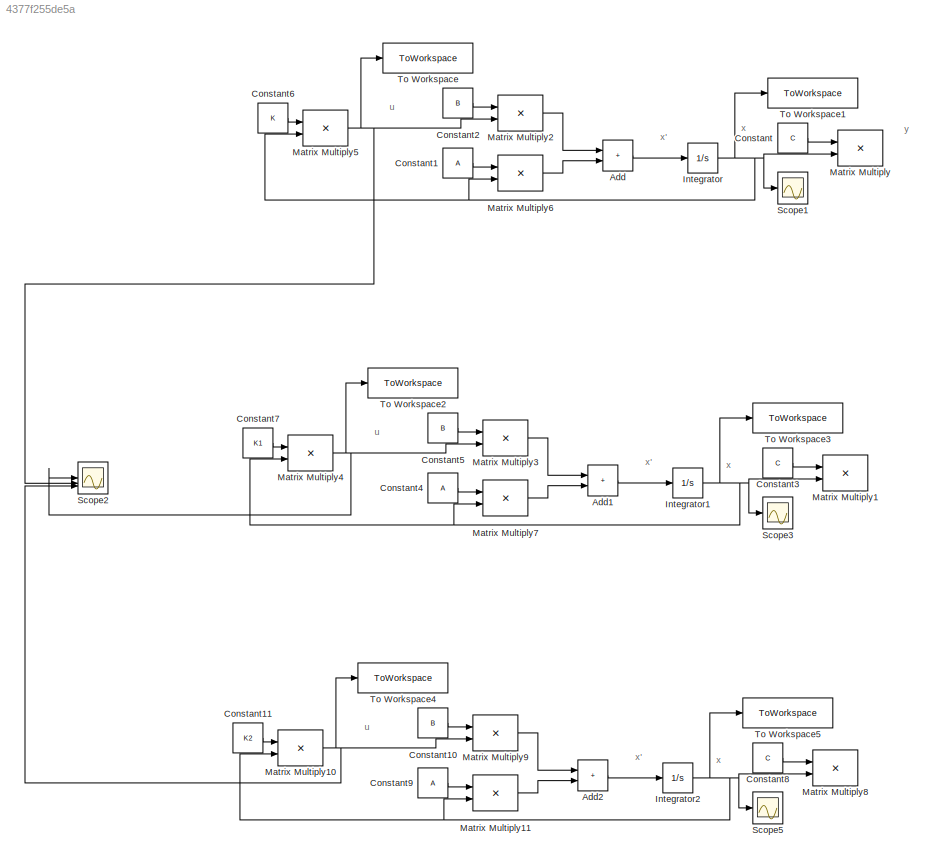
MODEL slx_4377f255de5a
KIND model
CONFIG AbsTol = auto
CONFIG EnableMultiTasking = off
CONFIG FixedStep = 0.0001
CONFIG MaxStep = auto
CONFIG MinStep = auto
CONFIG RelTol = 1e-3
CONFIG SampleTimeConstraint = Unconstrained
CONFIG SolverName = FixedStepAuto
CONFIG StartTime = 0.0
CONFIG StopTime = 10
BLOCK [Sum] Add
  IconShape = rectangular
BLOCK [Sum] Add1
  IconShape = rectangular
BLOCK [Sum] Add2
  IconShape = rectangular
BLOCK [Constant] Constant
  Value = C
BLOCK [Constant] Constant1
  Value = A
BLOCK [Constant] Constant10
  Value = B
BLOCK [Constant] Constant11
  Value = K2
  VectorParams1D = off
BLOCK [Constant] Constant2
  Value = B
BLOCK [Constant] Constant3
  Value = C
BLOCK [Constant] Constant4
  Value = A
BLOCK [Constant] Constant5
  Value = B
BLOCK [Constant] Constant6
  Value = K
  VectorParams1D = off
BLOCK [Constant] Constant7
  Value = K1
  VectorParams1D = off
BLOCK [Constant] Constant8
  Value = C
BLOCK [Constant] Constant9
  Value = A
BLOCK [Integrator] Integrator
  IgnoreLimit = on
  InitialCondition = x0
BLOCK [Integrator] Integrator1
  IgnoreLimit = on
  InitialCondition = x0
BLOCK [Integrator] Integrator2
  IgnoreLimit = on
  InitialCondition = x0
BLOCK [Product] Matrix Multiply
  Multiplication = Matrix(*)
BLOCK [Product] Matrix Multiply1
  Multiplication = Matrix(*)
BLOCK [Product] Matrix Multiply10
  Multiplication = Matrix(*)
BLOCK [Product] Matrix Multiply11
  Multiplication = Matrix(*)
BLOCK [Product] Matrix Multiply2
  Multiplication = Matrix(*)
BLOCK [Product] Matrix Multiply3
  Multiplication = Matrix(*)
BLOCK [Product] Matrix Multiply4
  Multiplication = Matrix(*)
BLOCK [Product] Matrix Multiply5
  Multiplication = Matrix(*)
BLOCK [Product] Matrix Multiply6
  Multiplication = Matrix(*)
BLOCK [Product] Matrix Multiply7
  Multiplication = Matrix(*)
BLOCK [Product] Matrix Multiply8
  Multiplication = Matrix(*)
BLOCK [Product] Matrix Multiply9
  Multiplication = Matrix(*)
BLOCK [Scope] Scope1
  Floating = off
  NumInputPorts = 1
  ScopeSpecificationString = Simulink.scopes.TimeScopeBlockCfg('CurrentConfiguration', extmgr.ConfigurationSet(extmgr.Configuration('Core','General UI',true),extmgr.Configuration('Core','Source UI',true),extmgr.Configuration('Sources','WiredSimulink',true,'DataLoggingVariableName','ScopeData2'),extmgr.Configuration('Visuals','Time Domain',true,'SerializedDisplays',{struct('MinYLimReal','-8.68513','MaxYLimReal','8.04839','YLab...<+1416ch>
BLOCK [Scope] Scope2
  Floating = off
  NumInputPorts = 3
  ScopeSpecificationString = Simulink.scopes.TimeScopeBlockCfg('CurrentConfiguration', extmgr.ConfigurationSet(extmgr.Configuration('Core','General UI',true),extmgr.Configuration('Core','Source UI',true),extmgr.Configuration('Sources','WiredSimulink',true,'DataLoggingVariableName','ScopeData1'),extmgr.Configuration('Visuals','Time Domain',true,'SerializedDisplays',{struct('MinYLimReal','-17.18017','MaxYLimReal','9.62517','YLa...<+1447ch>
BLOCK [Scope] Scope3
  Floating = off
  NumInputPorts = 1
  ScopeSpecificationString = Simulink.scopes.TimeScopeBlockCfg('CurrentConfiguration', extmgr.ConfigurationSet(extmgr.Configuration('Core','General UI',true),extmgr.Configuration('Core','Source UI',true),extmgr.Configuration('Sources','WiredSimulink',true,'DataLoggingVariableName','ScopeData2'),extmgr.Configuration('Visuals','Time Domain',true,'SerializedDisplays',{struct('MinYLimReal','-10.10587','MaxYLimReal','6.56523','YLa...<+1424ch>
BLOCK [Scope] Scope5
  Floating = off
  NumInputPorts = 1
  ScopeSpecificationString = Simulink.scopes.TimeScopeBlockCfg('CurrentConfiguration', extmgr.ConfigurationSet(extmgr.Configuration('Core','General UI',true),extmgr.Configuration('Core','Source UI',true),extmgr.Configuration('Sources','WiredSimulink',true,'DataLoggingVariableName','ScopeData4'),extmgr.Configuration('Visuals','Time Domain',true,'SerializedDisplays',{struct('MinYLimReal','-10.95959','MaxYLimReal','6.29175','YLa...<+1424ch>
BLOCK [ToWorkspace] To Workspace
  FixptAsFi = on
  MaxDataPoints = inf
  SampleTime = -1
  SaveFormat = Timeseries
  VariableName = u
BLOCK [ToWorkspace] To Workspace1
  FixptAsFi = on
  MaxDataPoints = inf
  SampleTime = -1
  SaveFormat = Timeseries
  VariableName = x
BLOCK [ToWorkspace] To Workspace2
  FixptAsFi = on
  MaxDataPoints = inf
  SampleTime = -1
  SaveFormat = Timeseries
  VariableName = u1
BLOCK [ToWorkspace] To Workspace3
  FixptAsFi = on
  MaxDataPoints = inf
  SampleTime = -1
  SaveFormat = Timeseries
  VariableName = x1
BLOCK [ToWorkspace] To Workspace4
  FixptAsFi = on
  MaxDataPoints = inf
  SampleTime = -1
  SaveFormat = Timeseries
  VariableName = u2
BLOCK [ToWorkspace] To Workspace5
  FixptAsFi = on
  MaxDataPoints = inf
  SampleTime = -1
  SaveFormat = Timeseries
  VariableName = x2
ANNOTATION (root): u
ANNOTATION (root): x
ANNOTATION (root): x'
ANNOTATION (root): y
LINE Add1:1 -> Integrator1:1
LINE Add2:1 -> Integrator2:1
LINE Add:1 -> Integrator:1
LINE Constant10:1 -> Matrix Multiply9:1
LINE Constant11:1 -> Matrix Multiply10:1
LINE Constant1:1 -> Matrix Multiply6:1
LINE Constant2:1 -> Matrix Multiply2:1
LINE Constant3:1 -> Matrix Multiply1:1
LINE Constant4:1 -> Matrix Multiply7:1
LINE Constant5:1 -> Matrix Multiply3:1
LINE Constant6:1 -> Matrix Multiply5:1
LINE Constant7:1 -> Matrix Multiply4:1
LINE Constant8:1 -> Matrix Multiply8:1
LINE Constant9:1 -> Matrix Multiply11:1
LINE Constant:1 -> Matrix Multiply:1
NET Integrator1:1 -> Matrix Multiply1:2, Matrix Multiply4:2, Matrix Multiply7:2, Scope3:1, To Workspace3:1
NET Integrator2:1 -> Matrix Multiply10:2, Matrix Multiply11:2, Matrix Multiply8:2, Scope5:1, To Workspace5:1
NET Integrator:1 -> Matrix Multiply5:2, Matrix Multiply6:2, Matrix Multiply:2, Scope1:1, To Workspace1:1
NET Matrix Multiply10:1 -> Matrix Multiply9:2, Scope2:3, To Workspace4:1
LINE Matrix Multiply11:1 -> Add2:2
LINE Matrix Multiply2:1 -> Add:1
LINE Matrix Multiply3:1 -> Add1:1
NET Matrix Multiply4:1 -> Matrix Multiply3:2, Scope2:1, To Workspace2:1
NET Matrix Multiply5:1 -> Matrix Multiply2:2, Scope2:2, To Workspace:1
LINE Matrix Multiply6:1 -> Add:2
LINE Matrix Multiply7:1 -> Add1:2
LINE Matrix Multiply9:1 -> Add2:1
note: NET lines group one-source signal fan-out (src -> all destinations, sorted); 1:1 wires keep LINE
